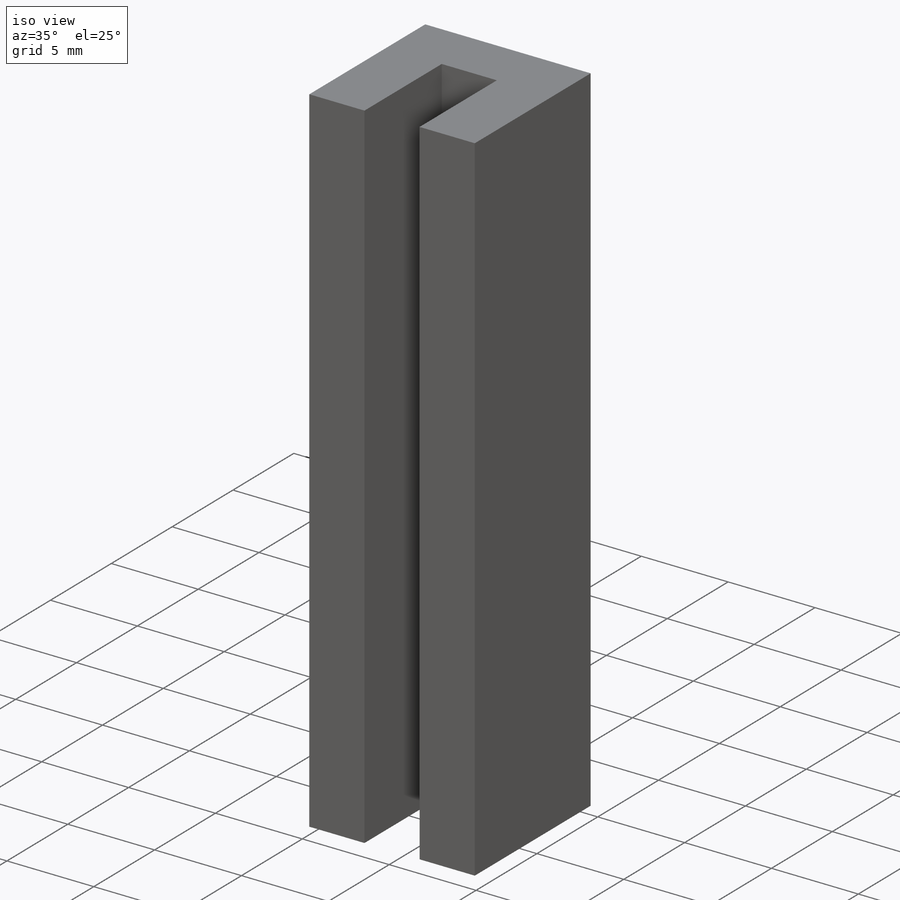
[diagram: iso view]
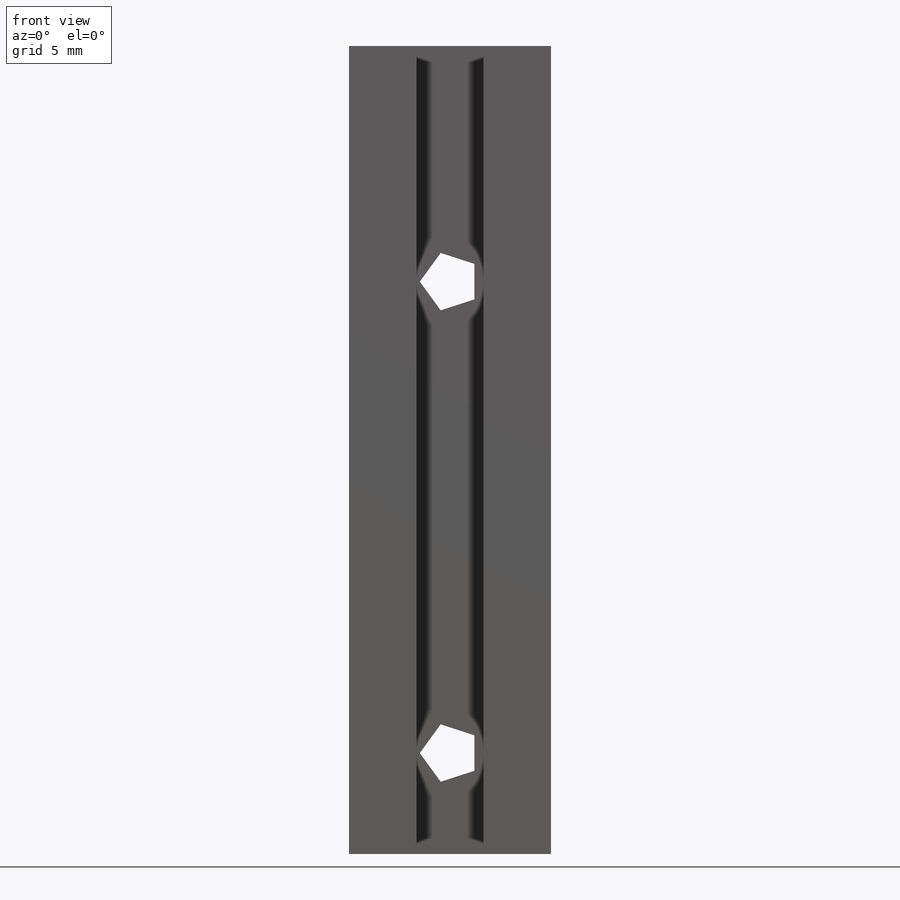
[diagram: front view]
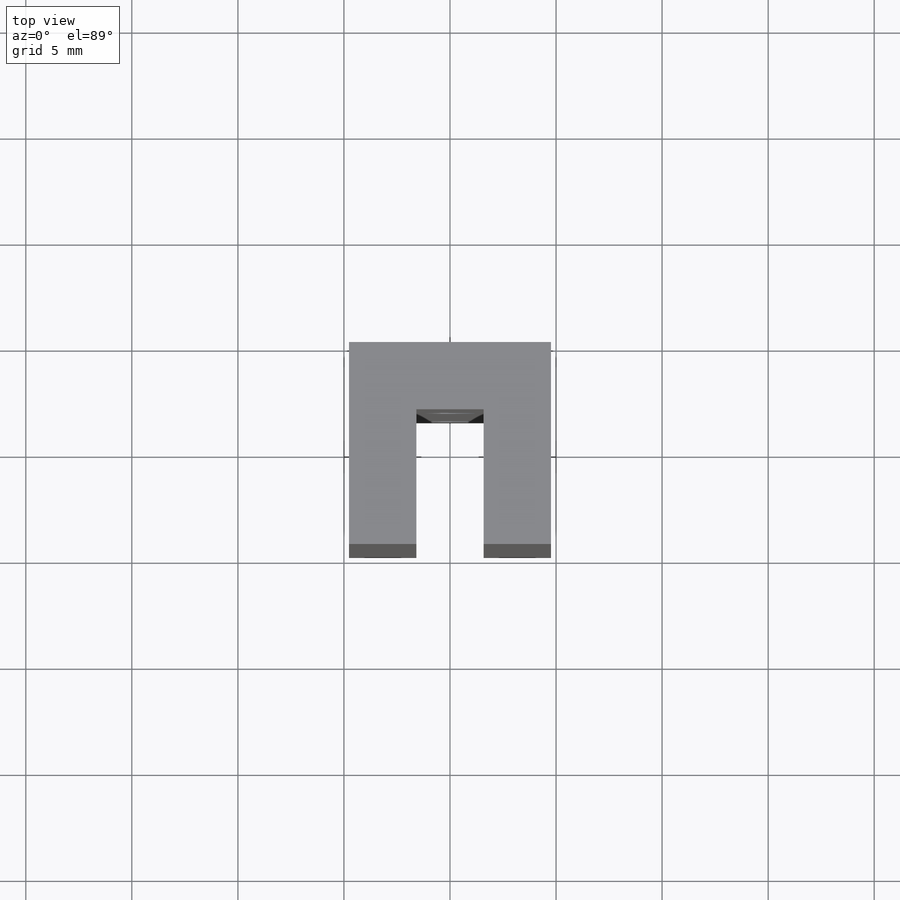
[diagram: top view]
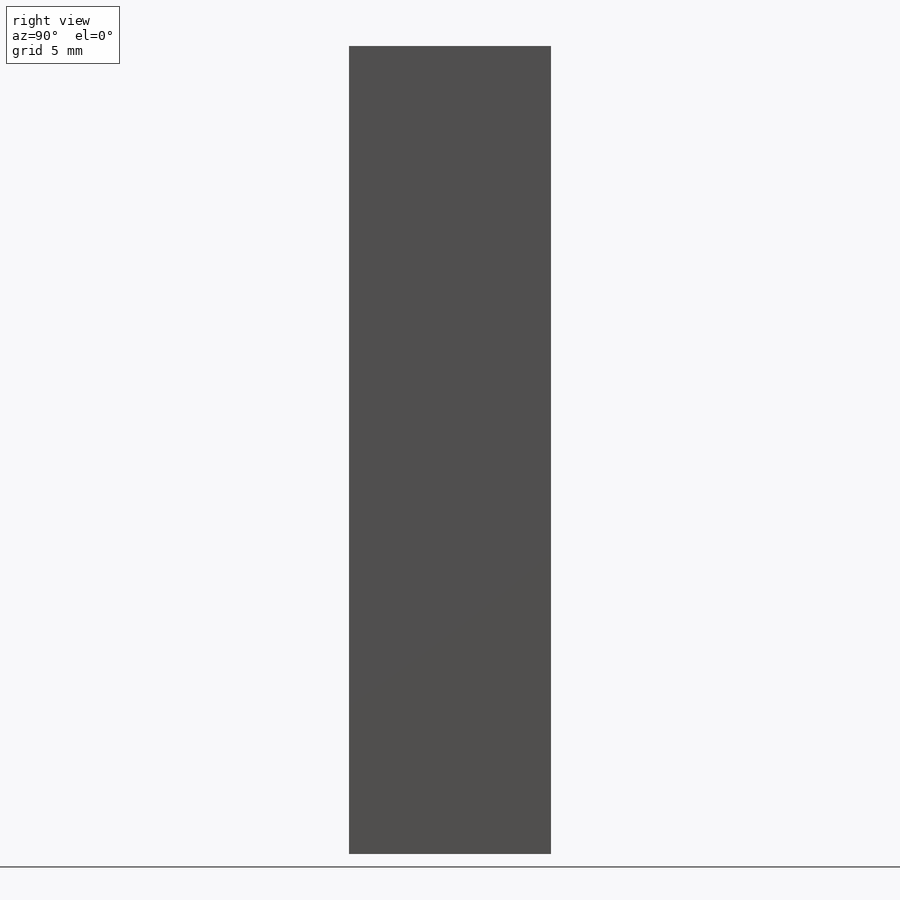
[diagram: right view]
SOLIDWORKS PART (.sldprt)
format: sldprt  version: not decoded by parser v0  size: 168,960 bytes
history: native  units: mm
features: sketch x3, material x1, extrude x1, hole x1 (+16 scaffold rows collapsed)
feature tree (22):
  scaffold x16  (default folders/planes/origin — collapsed)
  material  "6061 Alloy"
  sketch  "Sketch1"  dims[c1.D1=3.175mm c1.D2=3.175mm c1.D3=9.525mm c1.D4=3.175mm c1.D5=9.525mm c2.D4=3.175mm]
  extrude  "Extrude1"  Depth=38.1mm
  hole  "#4-40 Tapped Hole1"  Diameter=2.2606mm Depth=8.89mm
  sketch  "3DSketch1"  dims[D1=22.225mm D2=11.1125mm]
  sketch  "Sketch3"  dims[hole-wizard template sketch: 29 standard entries collapsed; hole parameters kept: c8.Tap Drill Depth=8.89mm c8.Thread Major Dia.=2.8448mm c8.Thread Depth=5.588mm c8.D5=~14.816244mm c8.Drill Angle=118.0deg]
decode coverage: 5 of 5 modeling features carry decoded parameters
note: ~ marks probable driven/reference dimensions
note: suppression state not decoded; provenance and decode notes live in map.json
